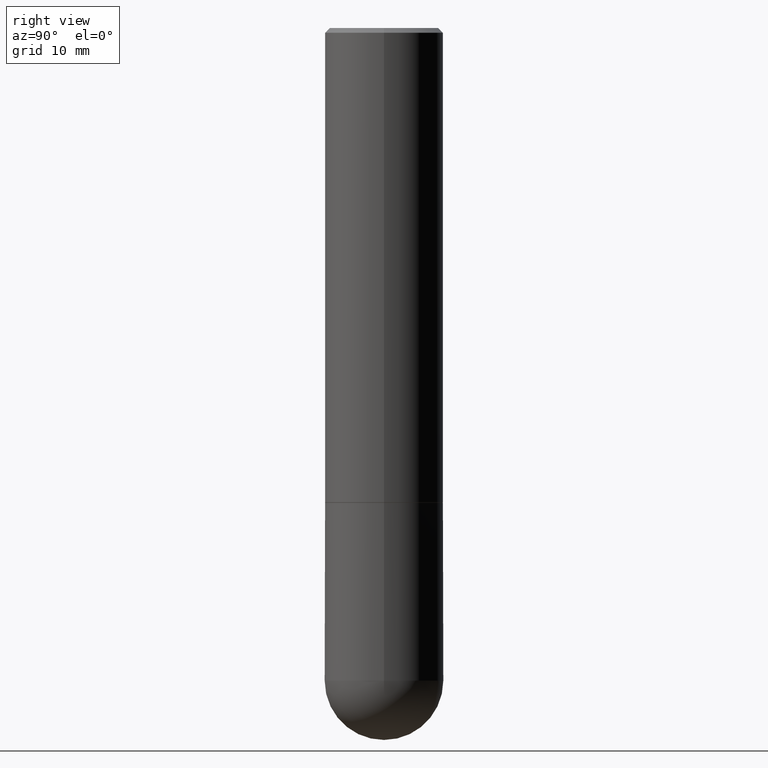
[diagram: clean part render]
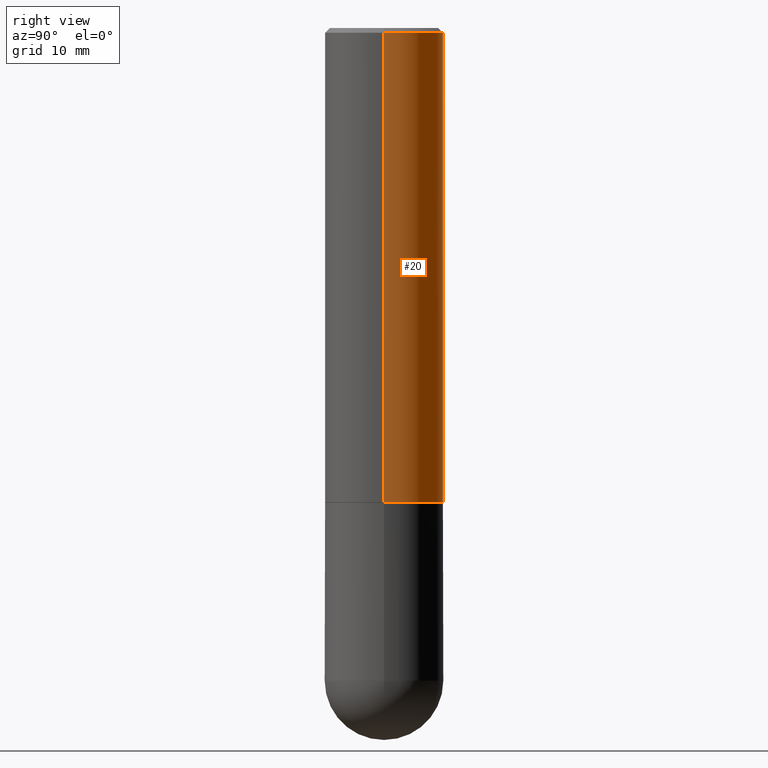
[diagram: same view with one face highlighted and labeled with its STEP entity id]
A machine part, right view. The second image highlights one B-rep face of the part: STEP entity #20.
In plain terms, the highlighted cylindrical surface (partial cylindrical patch) has radius 6.35 mm, axis along (-0, 0, 1).
Its self-contained STEP definition (entity closure, byte-faithful):
#4 = CARTESIAN_POINT ( 'NONE',  ( -0.2500000000000002220, -1.748293572161901516E-15, -1.999000000000000110 ) ) ;
#6 = CARTESIAN_POINT ( 'NONE',  ( 0.2500000000000001110, -1.745740669421567664E-15, 1.219044193948984649E-29 ) ) ;
#18 = CARTESIAN_POINT ( 'NONE',  ( 0.2500000000000002776, -8.725211865769017202E-15, -1.999000000000000110 ) ) ;
#19 = ORIENTED_EDGE ( 'NONE', *, *, #160, .T. ) ;
#20 = ADVANCED_FACE ( 'NONE', ( #247 ), #410, .T. ) ;
#21 = ORIENTED_EDGE ( 'NONE', *, *, #64, .T. ) ;
#23 = ORIENTED_EDGE ( 'NONE', *, *, #342, .F. ) ;
#34 = CARTESIAN_POINT ( 'NONE',  ( 0.000000000000000000, 0.000000000000000000, 0.000000000000000000 ) ) ;
#47 = CARTESIAN_POINT ( 'NONE',  ( -0.2500000000000001110, 1.776356839400251254E-15, -1.229733772563727146E-29 ) ) ;
#53 = CARTESIAN_POINT ( 'NONE',  ( 0.2500000000000000000, -1.784954126219746189E-15, -0.02000000000000005593 ) ) ;
#64 = EDGE_CURVE ( 'NONE', #143, #341, #97, .T. ) ;
#97 = CIRCLE ( 'NONE', #380, 0.2500000000000002776 ) ;
#99 = CARTESIAN_POINT ( 'NONE',  ( 4.888492143564088712E-29, -6.979471196347448158E-15, -1.999000000000000110 ) ) ;
#117 = AXIS2_PLACEMENT_3D ( 'NONE', #139, #393, #389 ) ;
#130 = LINE ( 'NONE', #6, #162 ) ;
#139 = CARTESIAN_POINT ( 'NONE',  ( 4.890937612370287172E-31, -6.982962677686310098E-17, -0.02000000000000005593 ) ) ;
#140 = VERTEX_POINT ( 'NONE', #262 ) ;
#143 = VERTEX_POINT ( 'NONE', #18 ) ;
#152 = DIRECTION ( 'NONE',  ( 1.000000000000000000, -6.982962677686266711E-15, 0.000000000000000000 ) ) ;
#160 = EDGE_CURVE ( 'NONE', #341, #140, #390, .T. ) ;
#162 = VECTOR ( 'NONE', #256, 39.37007874015748143 ) ;
#191 = VECTOR ( 'NONE', #209, 39.37007874015748143 ) ;
#209 = DIRECTION ( 'NONE',  ( -2.445468806185136877E-29, 3.491481338843145188E-15, 1.000000000000000000 ) ) ;
#211 = VERTEX_POINT ( 'NONE', #53 ) ;
#227 = CIRCLE ( 'NONE', #117, 0.2500000000000000000 ) ;
#231 = ORIENTED_EDGE ( 'NONE', *, *, #239, .F. ) ;
#239 = EDGE_CURVE ( 'NONE', #211, #140, #227, .T. ) ;
#247 = FACE_OUTER_BOUND ( 'NONE', #278, .T. ) ;
#256 = DIRECTION ( 'NONE',  ( -2.445468806185136877E-29, 3.491481338843145188E-15, 1.000000000000000000 ) ) ;
#262 = CARTESIAN_POINT ( 'NONE',  ( -0.2500000000000000000, 1.675911042644703577E-15, -0.02000000000000005593 ) ) ;
#278 = EDGE_LOOP ( 'NONE', ( #21, #19, #231, #23 ) ) ;
#288 = DIRECTION ( 'NONE',  ( 1.000000000000000000, -6.982962677686267499E-15, 4.876176775795936353E-29 ) ) ;
#341 = VERTEX_POINT ( 'NONE', #4 ) ;
#342 = EDGE_CURVE ( 'NONE', #143, #211, #130, .T. ) ;
#355 = AXIS2_PLACEMENT_3D ( 'NONE', #34, #378, #288 ) ;
#376 = DIRECTION ( 'NONE',  ( -2.445468806185136597E-29, 3.491481338843145583E-15, 1.000000000000000000 ) ) ;
#378 = DIRECTION ( 'NONE',  ( -2.445468806185136597E-29, 3.491481338843145583E-15, 1.000000000000000000 ) ) ;
#380 = AXIS2_PLACEMENT_3D ( 'NONE', #99, #376, #152 ) ;
#389 = DIRECTION ( 'NONE',  ( 1.000000000000000000, -6.982962677686266711E-15, 0.000000000000000000 ) ) ;
#390 = LINE ( 'NONE', #47, #191 ) ;
#393 = DIRECTION ( 'NONE',  ( -2.445468806185136597E-29, 3.491481338843145583E-15, 1.000000000000000000 ) ) ;
#410 = CYLINDRICAL_SURFACE ( 'NONE', #355, 0.2500000000000001110 ) ;